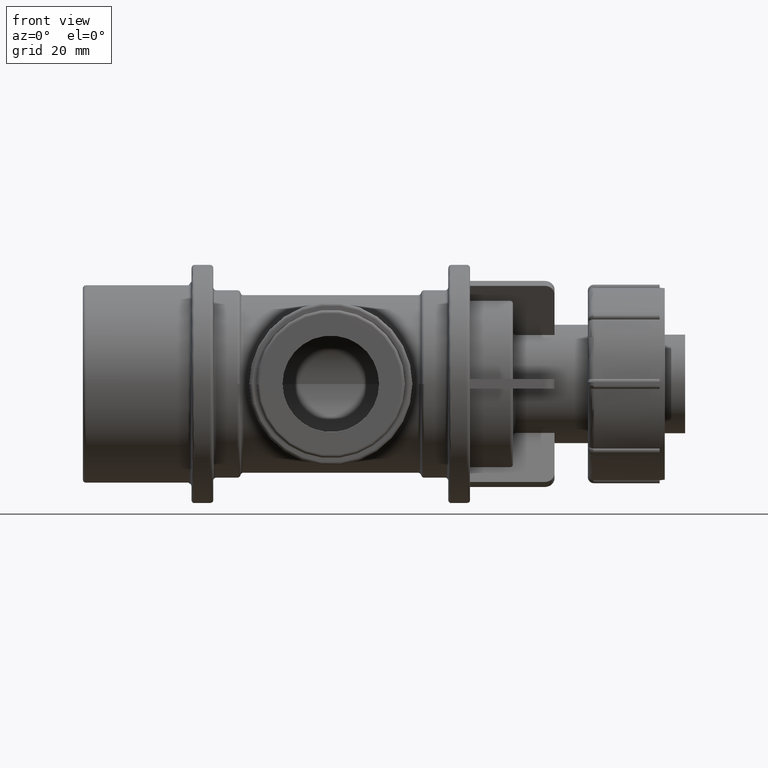
[diagram: clean part render]
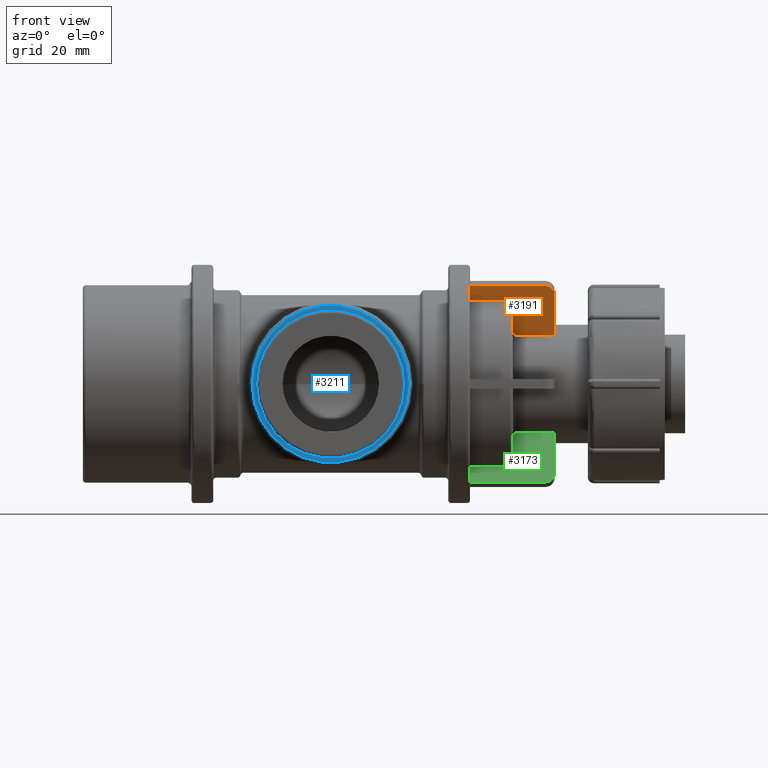
[diagram: same view with three faces highlighted in distinct colors, each labeled with its STEP entity id]
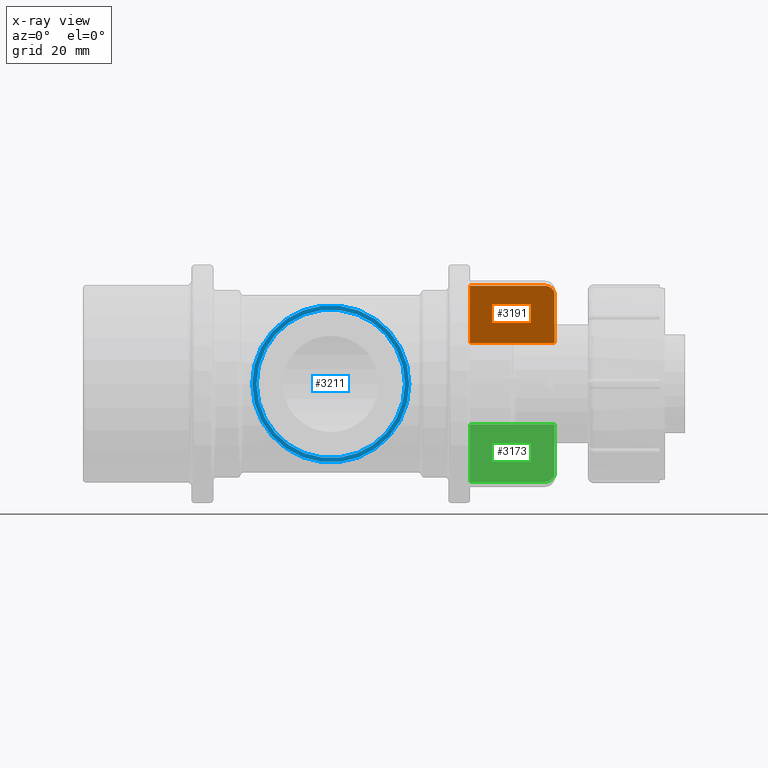
[diagram: x-ray of the same camera — body ghosted, the three highlighted faces saturated]
A machine part, front view with three faces highlighted in distinct colors.
The next image is the same camera in x-ray (body ghosted, the three faces saturated) — at least one of them is partly hidden behind the body in this view.
Their STEP definitions:

[orange] entity #3191 — the highlighted planar face has unit normal (0, -0.866, -0.5).
#176=LINE('',#6050,#358);
#180=LINE('',#6059,#362);
#182=LINE('',#6063,#364);
#184=LINE('',#6066,#366);
#358=VECTOR('',#4435,24.03);
#362=VECTOR('',#4443,18.2);
#364=VECTOR('',#4447,27.23);
#366=VECTOR('',#4451,21.4);
#495=PLANE('',#3569);
#698=CIRCLE('',#3562,3.2);
#984=FACE_OUTER_BOUND('',#1245,.T.);
#1245=EDGE_LOOP('',(#2849,#2850,#2851,#2852,#2853));
#1587=VERTEX_POINT('',#6037);
#1588=VERTEX_POINT('',#6038);
#1592=VERTEX_POINT('',#6048);
#1595=VERTEX_POINT('',#6058);
#1596=VERTEX_POINT('',#6062);
#2008=EDGE_CURVE('',#1587,#1588,#698,.T.);
#2014=EDGE_CURVE('',#1587,#1592,#176,.T.);
#2018=EDGE_CURVE('',#1595,#1588,#180,.T.);
#2020=EDGE_CURVE('',#1596,#1595,#182,.T.);
#2022=EDGE_CURVE('',#1592,#1596,#184,.T.);
#2849=ORIENTED_EDGE('',*,*,#2008,.F.);
#2850=ORIENTED_EDGE('',*,*,#2014,.T.);
#2851=ORIENTED_EDGE('',*,*,#2022,.T.);
#2852=ORIENTED_EDGE('',*,*,#2020,.T.);
#2853=ORIENTED_EDGE('',*,*,#2018,.T.);
#3191=ADVANCED_FACE('',(#984),#495,.T.);
#3562=AXIS2_PLACEMENT_3D('',#6039,#4425,#4426);
#3569=AXIS2_PLACEMENT_3D('',#6067,#4452,#4453);
#4425=DIRECTION('center_axis',(0.,0.866025403784439,0.5));
#4426=DIRECTION('ref_axis',(0.707106781186548,-0.353553390593274,0.612372435695795));
#4435=DIRECTION('',(-1.,-8.1544107574378E-17,1.41238537376685E-16));
#4443=DIRECTION('',(0.,-0.5,0.866025403784439));
#4447=DIRECTION('',(1.,-8.1544107574378E-17,1.41238537376685E-16));
#4451=DIRECTION('',(0.,0.5,-0.866025403784439));
#4452=DIRECTION('center_axis',(0.,-0.866025403784439,-0.5));
#4453=DIRECTION('ref_axis',(1.,0.,0.));
#6037=CARTESIAN_POINT('',(68.88,-20.0856406460551,31.589350101538));
#6038=CARTESIAN_POINT('',(72.08,-18.4856406460551,28.8180688094278));
#6039=CARTESIAN_POINT('Origin',(68.88,-18.4856406460551,28.8180688094278));
#6048=CARTESIAN_POINT('',(44.85,-20.0856406460551,31.589350101538));
#6050=CARTESIAN_POINT('',(72.08,-20.0856406460551,31.589350101538));
#6058=CARTESIAN_POINT('',(72.08,-9.3856406460551,13.056406460551));
#6059=CARTESIAN_POINT('',(72.08,-9.3856406460551,13.056406460551));
#6062=CARTESIAN_POINT('',(44.85,-9.3856406460551,13.056406460551));
#6063=CARTESIAN_POINT('',(44.85,-9.3856406460551,13.056406460551));
#6066=CARTESIAN_POINT('',(44.85,-20.0856406460551,31.589350101538));
#6067=CARTESIAN_POINT('Origin',(58.465,-14.7356406460551,22.3228782810445));

[blue] entity #3211 — the highlighted planar face has unit normal (0, -1, 0).
#509=PLANE('',#3598);
#708=CIRCLE('',#3597,25.29165);
#709=CIRCLE('',#3599,23.9015);
#792=FACE_BOUND('',#1271,.T.);
#1004=FACE_OUTER_BOUND('',#1270,.T.);
#1270=EDGE_LOOP('',(#2924));
#1271=EDGE_LOOP('',(#2925));
#1623=VERTEX_POINT('',#6263);
#1624=VERTEX_POINT('',#6266);
#2059=EDGE_CURVE('',#1623,#1623,#708,.T.);
#2060=EDGE_CURVE('',#1624,#1624,#709,.T.);
#2924=ORIENTED_EDGE('',*,*,#2059,.F.);
#2925=ORIENTED_EDGE('',*,*,#2060,.T.);
#3211=ADVANCED_FACE('',(#1004,#792),#509,.T.);
#3597=AXIS2_PLACEMENT_3D('',#6264,#4534,#4535);
#3598=AXIS2_PLACEMENT_3D('',#6265,#4536,#4537);
#3599=AXIS2_PLACEMENT_3D('',#6267,#4538,#4539);
#4534=DIRECTION('center_axis',(-1.22464679914735E-16,1.,0.));
#4535=DIRECTION('ref_axis',(1.,1.22464679914735E-16,0.));
#4536=DIRECTION('center_axis',(1.22464679914735E-16,-1.,0.));
#4537=DIRECTION('ref_axis',(0.,0.,-1.));
#4538=DIRECTION('center_axis',(-1.22464679914735E-16,1.,0.));
#4539=DIRECTION('ref_axis',(1.,1.22464679914735E-16,0.));
#6263=CARTESIAN_POINT('',(-25.29165,-49.,3.09733382176551E-15));
#6264=CARTESIAN_POINT('Origin',(6.00076931582203E-15,-49.,0.));
#6265=CARTESIAN_POINT('Origin',(-26.29165,-49.,0.));
#6266=CARTESIAN_POINT('',(-23.9015,-49.,0.));
#6267=CARTESIAN_POINT('Origin',(6.00076931582203E-15,-49.,0.));

[green] entity #3173 — the highlighted planar face has unit normal (0, -0.866, 0.5).
#148=LINE('',#5983,#330);
#151=LINE('',#5989,#333);
#152=LINE('',#5991,#334);
#153=LINE('',#5992,#335);
#330=VECTOR('',#4371,24.03);
#333=VECTOR('',#4376,18.2);
#334=VECTOR('',#4377,27.23);
#335=VECTOR('',#4378,21.4);
#479=PLANE('',#3547);
#695=CIRCLE('',#3545,3.2);
#966=FACE_OUTER_BOUND('',#1227,.T.);
#1227=EDGE_LOOP('',(#2772,#2773,#2774,#2775,#2776));
#1569=VERTEX_POINT('',#5976);
#1570=VERTEX_POINT('',#5978);
#1571=VERTEX_POINT('',#5982);
#1573=VERTEX_POINT('',#5988);
#1574=VERTEX_POINT('',#5990);
#1980=EDGE_CURVE('',#1569,#1570,#695,.T.);
#1982=EDGE_CURVE('',#1571,#1570,#148,.T.);
#1985=EDGE_CURVE('',#1569,#1573,#151,.T.);
#1986=EDGE_CURVE('',#1573,#1574,#152,.T.);
#1987=EDGE_CURVE('',#1574,#1571,#153,.T.);
#2772=ORIENTED_EDGE('',*,*,#1980,.F.);
#2773=ORIENTED_EDGE('',*,*,#1985,.T.);
#2774=ORIENTED_EDGE('',*,*,#1986,.T.);
#2775=ORIENTED_EDGE('',*,*,#1987,.T.);
#2776=ORIENTED_EDGE('',*,*,#1982,.T.);
#3173=ADVANCED_FACE('',(#966),#479,.T.);
#3545=AXIS2_PLACEMENT_3D('',#5979,#4366,#4367);
#3547=AXIS2_PLACEMENT_3D('',#5987,#4374,#4375);
#4366=DIRECTION('center_axis',(0.,0.866025403784438,-0.5));
#4367=DIRECTION('ref_axis',(0.707106781186547,-0.353553390593274,-0.612372435695794));
#4371=DIRECTION('',(1.,8.1544107574378E-17,1.41238537376685E-16));
#4374=DIRECTION('center_axis',(0.,-0.866025403784438,0.5));
#4375=DIRECTION('ref_axis',(-1.,0.,0.));
#4376=DIRECTION('',(0.,0.5,0.866025403784438));
#4377=DIRECTION('',(-1.,8.15441075743781E-17,1.41238537376685E-16));
#4378=DIRECTION('',(0.,-0.5,-0.866025403784438));
#5976=CARTESIAN_POINT('',(72.08,-18.4856406460551,-28.8180688094278));
#5978=CARTESIAN_POINT('',(68.88,-20.0856406460551,-31.589350101538));
#5979=CARTESIAN_POINT('Origin',(68.88,-18.4856406460551,-28.8180688094278));
#5982=CARTESIAN_POINT('',(44.85,-20.0856406460551,-31.589350101538));
#5983=CARTESIAN_POINT('',(72.08,-20.0856406460551,-31.589350101538));
#5987=CARTESIAN_POINT('Origin',(58.465,-14.7356406460551,-22.3228782810445));
#5988=CARTESIAN_POINT('',(72.08,-9.38564064605511,-13.056406460551));
#5989=CARTESIAN_POINT('',(72.08,-10.9856406460551,-15.8276877526612));
#5990=CARTESIAN_POINT('',(44.85,-9.38564064605511,-13.056406460551));
#5991=CARTESIAN_POINT('',(44.85,-9.38564064605511,-13.056406460551));
#5992=CARTESIAN_POINT('',(44.85,-20.0856406460551,-31.589350101538));